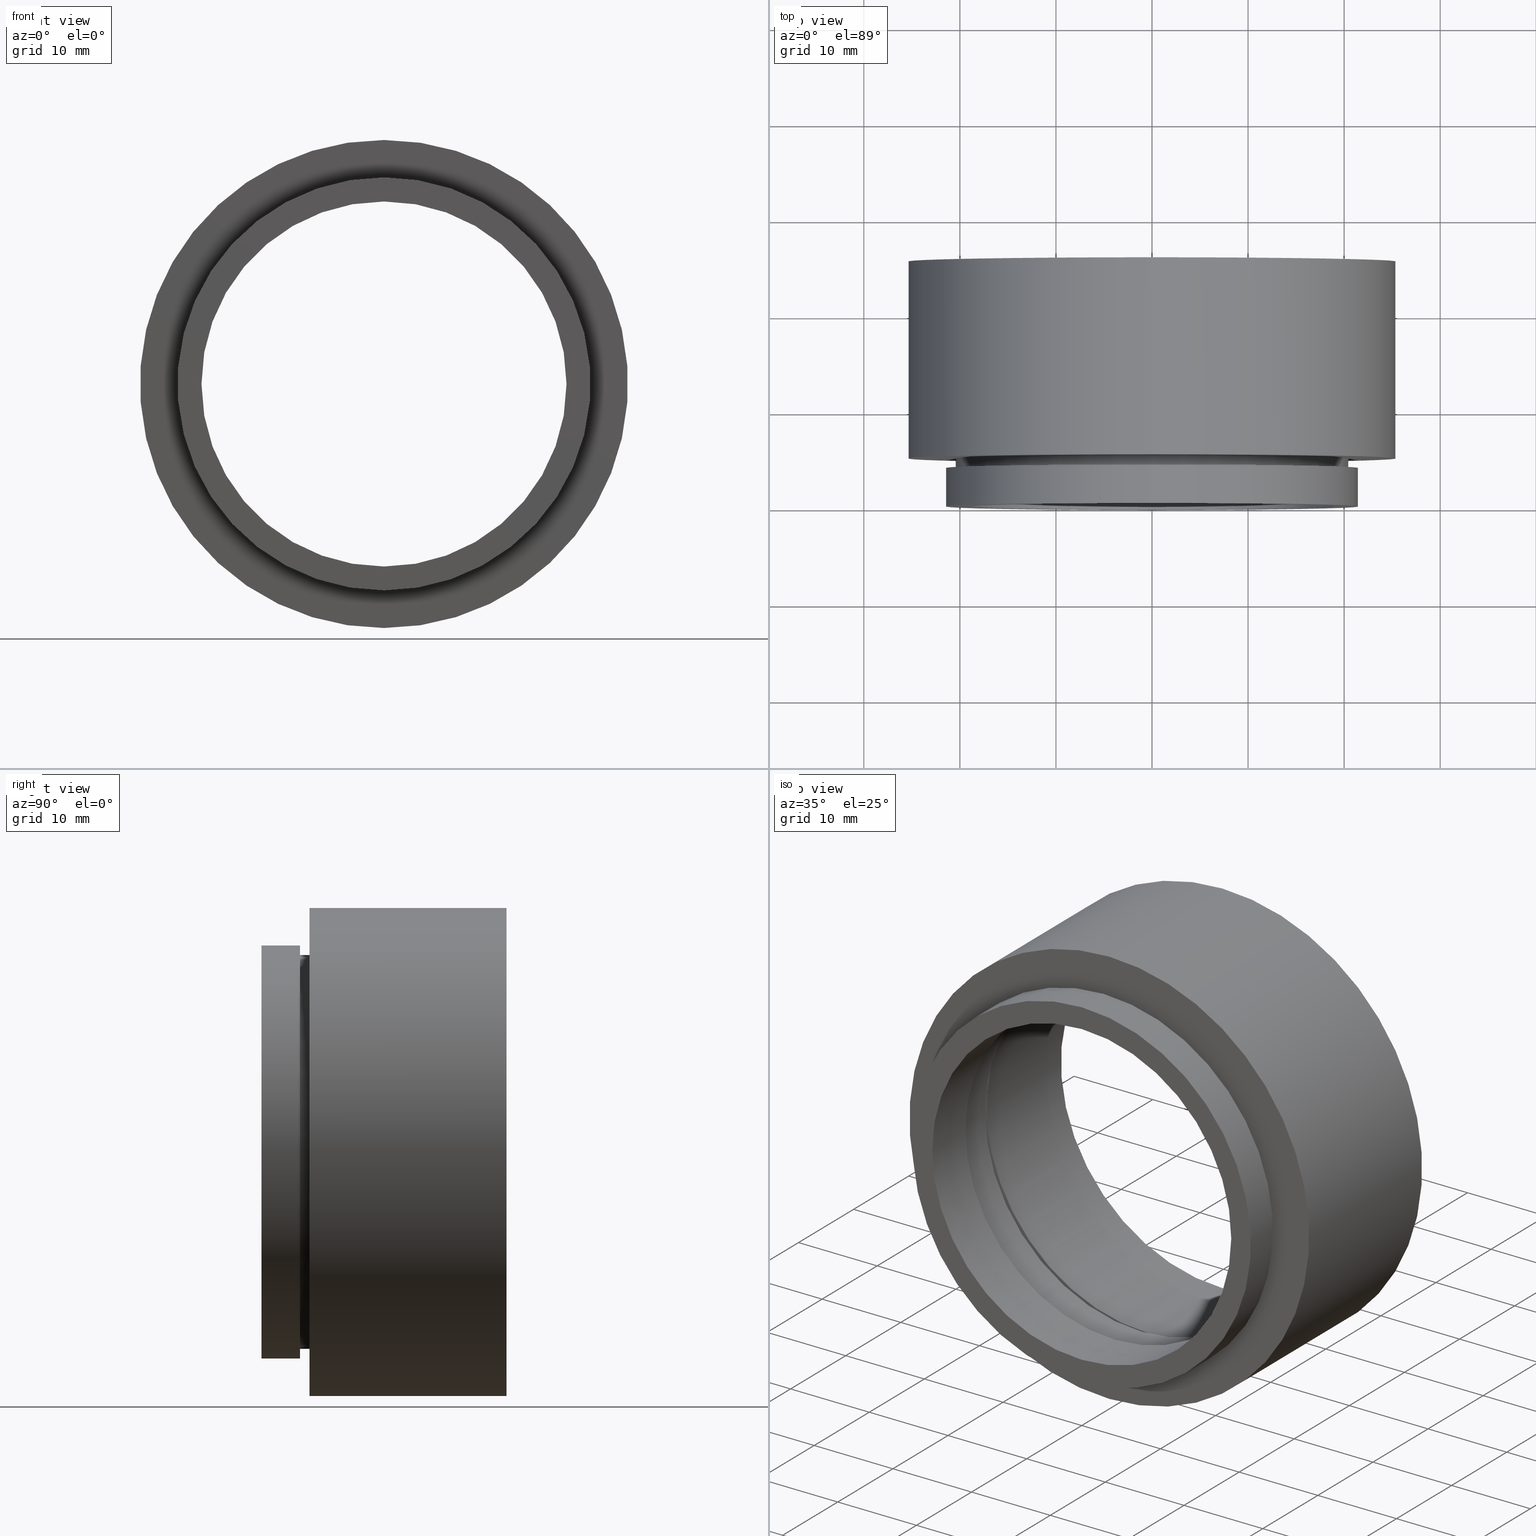
[diagram: canonical four-view strip — front | top / right | iso, engineering-drawing reading convention]
A machine part, canonical four-view strip (front | top / right | iso — engineering-drawing reading convention). The complete STEP part file that produces these views, byte-faithful:
ISO-10303-21;
HEADER;
FILE_DESCRIPTION (( 'STEP AP214' ),
    '1' );
FILE_NAME ('500011.STEP',
    '2019-08-29T07:36:52',
    ( 'user' ),
    ( '΢���й�' ),
    'SwSTEP 2.0',
    'SolidWorks 2016',
    '' );
FILE_SCHEMA (( 'AUTOMOTIVE_DESIGN' ));
ENDSEC;

DATA;
#1 = ORIENTED_EDGE ( 'NONE', *, *, #432, .F. ) ;
#2 = CARTESIAN_POINT ( 'NONE',  ( 0.0000000000000000000, 6.000000000000000000, 0.0000000000000000000 ) ) ;
#3 = ORIENTED_EDGE ( 'NONE', *, *, #542, .T. ) ;
#4 = ORIENTED_EDGE ( 'NONE', *, *, #295, .T. ) ;
#5 = CARTESIAN_POINT ( 'NONE',  ( 0.0000000000000000000, 5.000000000000000000, -25.39999999999999900 ) ) ;
#6 = DIRECTION ( 'NONE',  ( -0.0000000000000000000, -1.000000000000000000, -0.0000000000000000000 ) ) ;
#7 = AXIS2_PLACEMENT_3D ( 'NONE', #117, #543, #64 ) ;
#8 = VECTOR ( 'NONE', #73, 1000.000000000000000 ) ;
#9 = ADVANCED_FACE ( 'NONE', ( #264 ), #110, .T. ) ;
#10 =( NAMED_UNIT ( * ) PLANE_ANGLE_UNIT ( ) SI_UNIT ( $, .RADIAN. ) );
#11 = VERTEX_POINT ( 'NONE', #5 ) ;
#12 = DIRECTION ( 'NONE',  ( -0.0000000000000000000, -1.000000000000000000, -0.0000000000000000000 ) ) ;
#13 = EDGE_LOOP ( 'NONE', ( #665, #504 ) ) ;
#14 = DIRECTION ( 'NONE',  ( -0.0000000000000000000, -1.000000000000000000, -0.0000000000000000000 ) ) ;
#15 = AXIS2_PLACEMENT_3D ( 'NONE', #517, #123, #77 ) ;
#16 = CYLINDRICAL_SURFACE ( 'NONE', #506, 19.99999999999999600 ) ;
#17 = SURFACE_SIDE_STYLE ('',( #291 ) ) ;
#18 = CIRCLE ( 'NONE', #612, 20.00000000000000000 ) ;
#19 = DIRECTION ( 'NONE',  ( 0.0000000000000000000, 0.0000000000000000000, -1.000000000000000000 ) ) ;
#20 = SURFACE_STYLE_USAGE ( .BOTH. , #134 ) ;
#21 = CARTESIAN_POINT ( 'NONE',  ( 2.584004746200915400E-015, 11.00000000000000200, 21.10000000000000100 ) ) ;
#22 = VERTEX_POINT ( 'NONE', #363 ) ;
#23 = ORIENTED_EDGE ( 'NONE', *, *, #435, .F. ) ;
#24 = CARTESIAN_POINT ( 'NONE',  ( 0.0000000000000000000, 12.00000000000000000, 0.0000000000000000000 ) ) ;
#25 = AXIS2_PLACEMENT_3D ( 'NONE', #645, #590, #252 ) ;
#26 = PLANE ( 'NONE',  #587 ) ;
#27 = AXIS2_PLACEMENT_3D ( 'NONE', #151, #164, #273 ) ;
#28 = FACE_OUTER_BOUND ( 'NONE', #43, .T. ) ;
#29 = EDGE_CURVE ( 'NONE', #357, #63, #282, .T. ) ;
#30 = ORIENTED_EDGE ( 'NONE', *, *, #493, .F. ) ;
#31 = VERTEX_POINT ( 'NONE', #445 ) ;
#32 = AXIS2_PLACEMENT_3D ( 'NONE', #289, #617, #603 ) ;
#33 = LINE ( 'NONE', #466, #229 ) ;
#34 = EDGE_LOOP ( 'NONE', ( #465, #451, #330, #489 ) ) ;
#35 = FACE_OUTER_BOUND ( 'NONE', #356, .T. ) ;
#36 = ORIENTED_EDGE ( 'NONE', *, *, #527, .T. ) ;
#37 = CARTESIAN_POINT ( 'NONE',  ( 0.0000000000000000000, -6.123233995736767300E-016, -19.00000000000000000 ) ) ;
#38 = CARTESIAN_POINT ( 'NONE',  ( 0.0000000000000000000, 3.999999999999999100, 0.0000000000000000000 ) ) ;
#39 = CIRCLE ( 'NONE', #162, 20.50000000000000000 ) ;
#40 = EDGE_CURVE ( 'NONE', #412, #488, #120, .T. ) ;
#41 = DIRECTION ( 'NONE',  ( 0.0000000000000000000, 1.000000000000000000, 0.0000000000000000000 ) ) ;
#42 = AXIS2_PLACEMENT_3D ( 'NONE', #664, #143, #596 ) ;
#43 = EDGE_LOOP ( 'NONE', ( #341, #602, #409, #565 ) ) ;
#44 = EDGE_CURVE ( 'NONE', #267, #31, #115, .T. ) ;
#45 = DIRECTION ( 'NONE',  ( 0.0000000000000000000, 0.0000000000000000000, -1.000000000000000000 ) ) ;
#46 = ORIENTED_EDGE ( 'NONE', *, *, #292, .T. ) ;
#47 = DIRECTION ( 'NONE',  ( -0.0000000000000000000, -1.000000000000000000, -0.0000000000000000000 ) ) ;
#48 = FACE_OUTER_BOUND ( 'NONE', #652, .T. ) ;
#49 = CARTESIAN_POINT ( 'NONE',  ( 0.0000000000000000000, 0.0000000000000000000, -20.50000000000000000 ) ) ;
#50 = VECTOR ( 'NONE', #227, 1000.000000000000000 ) ;
#51 = STYLED_ITEM ( 'NONE', ( #182 ), #74 ) ;
#52 = EDGE_CURVE ( 'NONE', #481, #257, #411, .T. ) ;
#53 = DIRECTION ( 'NONE',  ( -0.0000000000000000000, -1.000000000000000000, -0.0000000000000000000 ) ) ;
#54 = EDGE_LOOP ( 'NONE', ( #422, #62 ) ) ;
#55 = EDGE_CURVE ( 'NONE', #285, #146, #105, .T. ) ;
#56 = VERTEX_POINT ( 'NONE', #94 ) ;
#57 = DIRECTION ( 'NONE',  ( -0.0000000000000000000, -1.000000000000000000, -0.0000000000000000000 ) ) ;
#58 = PRODUCT_CONTEXT ( 'NONE', #391, 'mechanical' ) ;
#59 = PRESENTATION_STYLE_ASSIGNMENT (( #300 ) ) ;
#60 = PRESENTATION_LAYER_ASSIGNMENT (  '', '', ( #51 ) ) ;
#61 = COLOUR_RGB ( '',1.000000000000000000, 1.000000000000000000, 1.000000000000000000 ) ;
#62 = ORIENTED_EDGE ( 'NONE', *, *, #592, .T. ) ;
#63 = VERTEX_POINT ( 'NONE', #37 ) ;
#64 = DIRECTION ( 'NONE',  ( 0.0000000000000000000, 0.0000000000000000000, -1.000000000000000000 ) ) ;
#65 = AXIS2_PLACEMENT_3D ( 'NONE', #24, #225, #475 ) ;
#66 = ADVANCED_FACE ( 'NONE', ( #294 ), #132, .T. ) ;
#67 = DIRECTION ( 'NONE',  ( 0.0000000000000000000, 0.0000000000000000000, 1.000000000000000000 ) ) ;
#68 = DIRECTION ( 'NONE',  ( 0.0000000000000000000, 0.0000000000000000000, -1.000000000000000000 ) ) ;
#69 = FACE_BOUND ( 'NONE', #54, .T. ) ;
#70 = DIRECTION ( 'NONE',  ( 0.0000000000000000000, -1.000000000000000000, -0.0000000000000000000 ) ) ;
#71 = ORIENTED_EDGE ( 'NONE', *, *, #286, .F. ) ;
#72 = ORIENTED_EDGE ( 'NONE', *, *, #281, .F. ) ;
#73 = DIRECTION ( 'NONE',  ( -0.0000000000000000000, -1.000000000000000000, -0.0000000000000000000 ) ) ;
#74 = ADVANCED_FACE ( 'NONE', ( #234 ), #186, .T. ) ;
#75 = AXIS2_PLACEMENT_3D ( 'NONE', #589, #41, #335 ) ;
#76 = CARTESIAN_POINT ( 'NONE',  ( 0.0000000000000000000, 6.000000000000000000, 0.0000000000000000000 ) ) ;
#77 = DIRECTION ( 'NONE',  ( 0.0000000000000000000, -0.0000000000000000000, 1.000000000000000000 ) ) ;
#78 = LINE ( 'NONE', #606, #103 ) ;
#79 = AXIS2_PLACEMENT_3D ( 'NONE', #397, #384, #171 ) ;
#80 = ORIENTED_EDGE ( 'NONE', *, *, #271, .F. ) ;
#81 = VERTEX_POINT ( 'NONE', #287 ) ;
#82 = DIRECTION ( 'NONE',  ( -0.0000000000000000000, -1.000000000000000000, -0.0000000000000000000 ) ) ;
#83 = CIRCLE ( 'NONE', #509, 20.00000000000000000 ) ;
#84 = DIRECTION ( 'NONE',  ( -0.0000000000000000000, -1.000000000000000000, -0.0000000000000000000 ) ) ;
#85 = PLANE ( 'NONE',  #605 ) ;
#86 = CARTESIAN_POINT ( 'NONE',  ( 0.0000000000000000000, 0.0000000000000000000, -21.10000000000000100 ) ) ;
#87 = EDGE_CURVE ( 'NONE', #81, #357, #436, .T. ) ;
#88 = DIRECTION ( 'NONE',  ( 0.0000000000000000000, 0.0000000000000000000, -1.000000000000000000 ) ) ;
#89 = MECHANICAL_DESIGN_GEOMETRIC_PRESENTATION_REPRESENTATION (  '', ( #51 ), #270 ) ;
#90 = CIRCLE ( 'NONE', #362, 25.39999999999999900 ) ;
#91 = UNCERTAINTY_MEASURE_WITH_UNIT (LENGTH_MEASURE( 1.000000000000000100E-005 ), #444, 'distance_accuracy_value', 'NONE');
#92 = FACE_OUTER_BOUND ( 'NONE', #293, .T. ) ;
#93 = PLANE ( 'NONE',  #144 ) ;
#94 = CARTESIAN_POINT ( 'NONE',  ( 0.0000000000000000000, 3.999999999999999100, -20.50000000000000000 ) ) ;
#95 = COLOUR_RGB ( '',1.000000000000000000, 1.000000000000000000, 1.000000000000000000 ) ;
#96 = CARTESIAN_POINT ( 'NONE',  ( 0.0000000000000000000, 0.0000000000000000000, 0.0000000000000000000 ) ) ;
#97 = VECTOR ( 'NONE', #47, 1000.000000000000000 ) ;
#98 = AXIS2_PLACEMENT_3D ( 'NONE', #667, #248, #595 ) ;
#99 = DIRECTION ( 'NONE',  ( 0.0000000000000000000, 0.0000000000000000000, -1.000000000000000000 ) ) ;
#100 = DIRECTION ( 'NONE',  ( 0.0000000000000000000, 0.0000000000000000000, -1.000000000000000000 ) ) ;
#101 = AXIS2_PLACEMENT_3D ( 'NONE', #112, #279, #99 ) ;
#102 = COLOUR_RGB ( '',1.000000000000000000, 1.000000000000000000, 1.000000000000000000 ) ;
#103 = VECTOR ( 'NONE', #208, 1000.000000000000000 ) ;
#104 = DIRECTION ( 'NONE',  ( 0.0000000000000000000, 0.0000000000000000000, -1.000000000000000000 ) ) ;
#105 = CIRCLE ( 'NONE', #65, 20.50000000000000000 ) ;
#106 = MECHANICAL_DESIGN_GEOMETRIC_PRESENTATION_REPRESENTATION (  '', ( #122 ), #114 ) ;
#107 = FACE_OUTER_BOUND ( 'NONE', #139, .T. ) ;
#108 = FILL_AREA_STYLE_COLOUR ( '', #156 ) ;
#109 = DIRECTION ( 'NONE',  ( -0.0000000000000000000, -1.000000000000000000, -0.0000000000000000000 ) ) ;
#110 = CYLINDRICAL_SURFACE ( 'NONE', #79, 21.50000000000000000 ) ;
#111 = VECTOR ( 'NONE', #217, 1000.000000000000000 ) ;
#112 = CARTESIAN_POINT ( 'NONE',  ( 0.0000000000000000000, 11.00000000000000200, 0.0000000000000000000 ) ) ;
#113 = CARTESIAN_POINT ( 'NONE',  ( 2.510525938252074500E-015, 12.00000000000000000, 20.50000000000000000 ) ) ;
#114 =( GEOMETRIC_REPRESENTATION_CONTEXT ( 3 ) GLOBAL_UNCERTAINTY_ASSIGNED_CONTEXT ( ( #276 ) ) GLOBAL_UNIT_ASSIGNED_CONTEXT ( ( #333, #140, #258 ) ) REPRESENTATION_CONTEXT ( 'NONE', 'WORKASPACE' ) );
#115 = CIRCLE ( 'NONE', #101, 21.10000000000000100 ) ;
#116 = CARTESIAN_POINT ( 'NONE',  ( 2.584004746200915400E-015, 12.00000000000000000, 21.10000000000000100 ) ) ;
#117 = CARTESIAN_POINT ( 'NONE',  ( 0.0000000000000000000, 11.00000000000000200, 0.0000000000000000000 ) ) ;
#118 = DIRECTION ( 'NONE',  ( -0.0000000000000000000, -1.000000000000000000, -0.0000000000000000000 ) ) ;
#119 = VECTOR ( 'NONE', #316, 1000.000000000000000 ) ;
#120 = LINE ( 'NONE', #307, #119 ) ;
#121 = DIRECTION ( 'NONE',  ( -0.0000000000000000000, -1.000000000000000000, -0.0000000000000000000 ) ) ;
#122 = STYLED_ITEM ( 'NONE', ( #190 ), #9 ) ;
#123 = DIRECTION ( 'NONE',  ( 0.0000000000000000000, 1.000000000000000000, 0.0000000000000000000 ) ) ;
#124 = EDGE_LOOP ( 'NONE', ( #214, #601 ) ) ;
#125 = DIRECTION ( 'NONE',  ( 0.0000000000000000000, 0.0000000000000000000, -1.000000000000000000 ) ) ;
#126 = PRESENTATION_LAYER_ASSIGNMENT (  '', '', ( #122 ) ) ;
#127 = CARTESIAN_POINT ( 'NONE',  ( 0.0000000000000000000, 0.0000000000000000000, 0.0000000000000000000 ) ) ;
#128 = PLANE ( 'NONE',  #15 ) ;
#129 = VERTEX_POINT ( 'NONE', #368 ) ;
#130 = EDGE_CURVE ( 'NONE', #56, #651, #318, .T. ) ;
#131 = ORIENTED_EDGE ( 'NONE', *, *, #184, .F. ) ;
#132 = CYLINDRICAL_SURFACE ( 'NONE', #572, 25.39999999999999900 ) ;
#133 = CARTESIAN_POINT ( 'NONE',  ( 2.632990618166809200E-015, 0.0000000000000000000, 21.50000000000000000 ) ) ;
#134 = SURFACE_SIDE_STYLE ('',( #659 ) ) ;
#135 = SURFACE_SIDE_STYLE ('',( #299 ) ) ;
#136 = LINE ( 'NONE', #49, #8 ) ;
#137 = PRESENTATION_STYLE_ASSIGNMENT (( #389 ) ) ;
#138 = DIRECTION ( 'NONE',  ( 0.0000000000000000000, 1.000000000000000000, 0.0000000000000000000 ) ) ;
#139 = EDGE_LOOP ( 'NONE', ( #161, #633, #609, #376 ) ) ;
#140 =( NAMED_UNIT ( * ) PLANE_ANGLE_UNIT ( ) SI_UNIT ( $, .RADIAN. ) );
#141 = DIRECTION ( 'NONE',  ( 0.0000000000000000000, 0.0000000000000000000, -1.000000000000000000 ) ) ;
#142 = FACE_OUTER_BOUND ( 'NONE', #640, .T. ) ;
#143 = DIRECTION ( 'NONE',  ( -0.0000000000000000000, -1.000000000000000000, -0.0000000000000000000 ) ) ;
#144 = AXIS2_PLACEMENT_3D ( 'NONE', #628, #650, #179 ) ;
#145 = EDGE_CURVE ( 'NONE', #481, #31, #426, .T. ) ;
#146 = VERTEX_POINT ( 'NONE', #113 ) ;
#147 = CLOSED_SHELL ( 'NONE', ( #532, #626, #434, #629, #643, #9, #477, #350, #429, #74, #240, #418, #305, #66, #382, #578, #671, #315, #236, #387, #249 ) ) ;
#148 = FILL_AREA_STYLE ('',( #108 ) ) ;
#149 = FACE_OUTER_BOUND ( 'NONE', #564, .T. ) ;
#150 = FACE_OUTER_BOUND ( 'NONE', #661, .T. ) ;
#151 = CARTESIAN_POINT ( 'NONE',  ( 0.0000000000000000000, 0.0000000000000000000, 0.0000000000000000000 ) ) ;
#152 = ADVANCED_BREP_SHAPE_REPRESENTATION ( '500011', ( #584, #191 ), #296 ) ;
#153 = DIRECTION ( 'NONE',  ( -0.0000000000000000000, -1.000000000000000000, -0.0000000000000000000 ) ) ;
#154 = DIRECTION ( 'NONE',  ( 0.0000000000000000000, 0.0000000000000000000, -1.000000000000000000 ) ) ;
#155 = AXIS2_PLACEMENT_3D ( 'NONE', #239, #494, #379 ) ;
#156 = COLOUR_RGB ( '',1.000000000000000000, 1.000000000000000000, 1.000000000000000000 ) ;
#157 = DIRECTION ( 'NONE',  ( -0.0000000000000000000, -1.000000000000000000, -0.0000000000000000000 ) ) ;
#158 = ORIENTED_EDGE ( 'NONE', *, *, #295, .F. ) ;
#159 = CIRCLE ( 'NONE', #555, 19.00000000000000000 ) ;
#160 =( NAMED_UNIT ( * ) SI_UNIT ( $, .STERADIAN. ) SOLID_ANGLE_UNIT ( ) );
#161 = ORIENTED_EDGE ( 'NONE', *, *, #460, .F. ) ;
#162 = AXIS2_PLACEMENT_3D ( 'NONE', #38, #6, #166 ) ;
#163 = CARTESIAN_POINT ( 'NONE',  ( 0.0000000000000000000, 0.0000000000000000000, 0.0000000000000000000 ) ) ;
#164 = DIRECTION ( 'NONE',  ( -0.0000000000000000000, -1.000000000000000000, -0.0000000000000000000 ) ) ;
#165 = CARTESIAN_POINT ( 'NONE',  ( 0.0000000000000000000, 0.0000000000000000000, 0.0000000000000000000 ) ) ;
#166 = DIRECTION ( 'NONE',  ( 0.0000000000000000000, 0.0000000000000000000, -1.000000000000000000 ) ) ;
#167 = FACE_BOUND ( 'NONE', #13, .T. ) ;
#168 = DIRECTION ( 'NONE',  ( -0.0000000000000000000, -1.000000000000000000, -0.0000000000000000000 ) ) ;
#169 = DIRECTION ( 'NONE',  ( 1.000000000000000000, 0.0000000000000000000, 0.0000000000000000000 ) ) ;
#170 = CARTESIAN_POINT ( 'NONE',  ( 2.510525938252074500E-015, 25.50000000000000000, 20.50000000000000000 ) ) ;
#171 = DIRECTION ( 'NONE',  ( 0.0000000000000000000, 0.0000000000000000000, -1.000000000000000000 ) ) ;
#172 = DIRECTION ( 'NONE',  ( -0.0000000000000000000, -1.000000000000000000, -0.0000000000000000000 ) ) ;
#173 = EDGE_LOOP ( 'NONE', ( #449, #431, #71, #283 ) ) ;
#174 = COLOUR_RGB ( '',1.000000000000000000, 1.000000000000000000, 1.000000000000000000 ) ;
#175 = CARTESIAN_POINT ( 'NONE',  ( 0.0000000000000000000, 11.00000000000000000, 0.0000000000000000000 ) ) ;
#176 = CARTESIAN_POINT ( 'NONE',  ( 0.0000000000000000000, 4.999999999999999100, -20.50000000000000000 ) ) ;
#177 = VECTOR ( 'NONE', #12, 1000.000000000000000 ) ;
#178 = LINE ( 'NONE', #528, #192 ) ;
#179 = DIRECTION ( 'NONE',  ( 0.0000000000000000000, -0.0000000000000000000, 1.000000000000000000 ) ) ;
#180 = ORIENTED_EDGE ( 'NONE', *, *, #592, .F. ) ;
#181 = FACE_OUTER_BOUND ( 'NONE', #511, .T. ) ;
#182 = PRESENTATION_STYLE_ASSIGNMENT (( #470 ) ) ;
#183 = PRODUCT_DEFINITION_FORMATION_WITH_SPECIFIED_SOURCE ( '�κ�', '', #608, .NOT_KNOWN. ) ;
#184 = EDGE_CURVE ( 'NONE', #63, #512, #280, .T. ) ;
#185 = DIRECTION ( 'NONE',  ( -0.0000000000000000000, -1.000000000000000000, -0.0000000000000000000 ) ) ;
#186 = CYLINDRICAL_SURFACE ( 'NONE', #32, 21.50000000000000000 ) ;
#187 = EDGE_CURVE ( 'NONE', #11, #405, #90, .T. ) ;
#188 = DIRECTION ( 'NONE',  ( 0.0000000000000000000, 0.0000000000000000000, -1.000000000000000000 ) ) ;
#189 = ORIENTED_EDGE ( 'NONE', *, *, #618, .T. ) ;
#190 = PRESENTATION_STYLE_ASSIGNMENT (( #577 ) ) ;
#191 = AXIS2_PLACEMENT_3D ( 'NONE', #245, #67, #169 ) ;
#192 = VECTOR ( 'NONE', #503, 1000.000000000000000 ) ;
#193 = COLOUR_RGB ( '',1.000000000000000000, 1.000000000000000000, 1.000000000000000000 ) ;
#194 = PRODUCT_DEFINITION ( 'δ֪', '', #183, #615 ) ;
#195 = DIRECTION ( 'NONE',  ( 0.0000000000000000000, 0.0000000000000000000, -1.000000000000000000 ) ) ;
#196 = CARTESIAN_POINT ( 'NONE',  ( 0.0000000000000000000, 25.50000000000000000, 0.0000000000000000000 ) ) ;
#197 =( NAMED_UNIT ( * ) SI_UNIT ( $, .STERADIAN. ) SOLID_ANGLE_UNIT ( ) );
#198 = CARTESIAN_POINT ( 'NONE',  ( 2.326828918379971000E-015, 0.0000000000000000000, 19.00000000000000000 ) ) ;
#199 = CARTESIAN_POINT ( 'NONE',  ( 0.0000000000000000000, 25.50000000000000000, 0.0000000000000000000 ) ) ;
#200 = CARTESIAN_POINT ( 'NONE',  ( 2.326828918379971000E-015, -6.123233995736767300E-016, 19.00000000000000000 ) ) ;
#201 = AXIS2_PLACEMENT_3D ( 'NONE', #175, #570, #268 ) ;
#202 = FILL_AREA_STYLE_COLOUR ( '', #174 ) ;
#203 = CYLINDRICAL_SURFACE ( 'NONE', #563, 19.00000000000000000 ) ;
#204 = DIRECTION ( 'NONE',  ( -0.0000000000000000000, -1.000000000000000000, -0.0000000000000000000 ) ) ;
#205 = EDGE_LOOP ( 'NONE', ( #367, #473 ) ) ;
#206 = APPLICATION_PROTOCOL_DEFINITION ( 'draft international standard', 'automotive_design', 1998, #639 ) ;
#207 = AXIS2_PLACEMENT_3D ( 'NONE', #552, #410, #277 ) ;
#208 = DIRECTION ( 'NONE',  ( -0.0000000000000000000, -1.000000000000000000, -0.0000000000000000000 ) ) ;
#209 = EDGE_CURVE ( 'NONE', #257, #481, #326, .T. ) ;
#210 = DIRECTION ( 'NONE',  ( -0.0000000000000000000, -1.000000000000000000, -0.0000000000000000000 ) ) ;
#211 = EDGE_CURVE ( 'NONE', #257, #267, #288, .T. ) ;
#212 = DIRECTION ( 'NONE',  ( -0.0000000000000000000, -1.000000000000000000, -0.0000000000000000000 ) ) ;
#213 = EDGE_CURVE ( 'NONE', #438, #405, #178, .T. ) ;
#214 = ORIENTED_EDGE ( 'NONE', *, *, #130, .T. ) ;
#215 = DIRECTION ( 'NONE',  ( 0.0000000000000000000, 0.0000000000000000000, -1.000000000000000000 ) ) ;
#216 = DIRECTION ( 'NONE',  ( -0.0000000000000000000, -1.000000000000000000, -0.0000000000000000000 ) ) ;
#217 = DIRECTION ( 'NONE',  ( -0.0000000000000000000, -1.000000000000000000, -0.0000000000000000000 ) ) ;
#218 = FACE_BOUND ( 'NONE', #124, .T. ) ;
#219 =( NAMED_UNIT ( * ) SI_UNIT ( $, .STERADIAN. ) SOLID_ANGLE_UNIT ( ) );
#220 = FACE_BOUND ( 'NONE', #256, .T. ) ;
#221 = ORIENTED_EDGE ( 'NONE', *, *, #377, .F. ) ;
#222 = CARTESIAN_POINT ( 'NONE',  ( 0.0000000000000000000, 5.000000000000000000, 0.0000000000000000000 ) ) ;
#223 = ORIENTED_EDGE ( 'NONE', *, *, #44, .T. ) ;
#224 = MECHANICAL_DESIGN_GEOMETRIC_PRESENTATION_REPRESENTATION (  '', ( #247 ), #230 ) ;
#225 = DIRECTION ( 'NONE',  ( -0.0000000000000000000, -1.000000000000000000, -0.0000000000000000000 ) ) ;
#226 = AXIS2_PLACEMENT_3D ( 'NONE', #662, #327, #45 ) ;
#227 = DIRECTION ( 'NONE',  ( -0.0000000000000000000, -1.000000000000000000, -0.0000000000000000000 ) ) ;
#228 = CIRCLE ( 'NONE', #359, 20.50000000000000000 ) ;
#229 = VECTOR ( 'NONE', #490, 1000.000000000000000 ) ;
#230 =( GEOMETRIC_REPRESENTATION_CONTEXT ( 3 ) GLOBAL_UNCERTAINTY_ASSIGNED_CONTEXT ( ( #91 ) ) GLOBAL_UNIT_ASSIGNED_CONTEXT ( ( #444, #10, #197 ) ) REPRESENTATION_CONTEXT ( 'NONE', 'WORKASPACE' ) );
#231 = ORIENTED_EDGE ( 'NONE', *, *, #52, .T. ) ;
#232 = CYLINDRICAL_SURFACE ( 'NONE', #354, 20.50000000000000000 ) ;
#233 = DIRECTION ( 'NONE',  ( 0.0000000000000000000, 0.0000000000000000000, -1.000000000000000000 ) ) ;
#234 = FACE_OUTER_BOUND ( 'NONE', #583, .T. ) ;
#235 = DIRECTION ( 'NONE',  ( -0.0000000000000000000, -1.000000000000000000, -0.0000000000000000000 ) ) ;
#236 = ADVANCED_FACE ( 'NONE', ( #69, #370 ), #369, .T. ) ;
#237 = EDGE_CURVE ( 'NONE', #467, #438, #250, .T. ) ;
#238 = LINE ( 'NONE', #442, #554 ) ;
#239 = CARTESIAN_POINT ( 'NONE',  ( 0.0000000000000000000, 4.999999999999999100, 0.0000000000000000000 ) ) ;
#240 = ADVANCED_FACE ( 'NONE', ( #218, #526 ), #93, .T. ) ;
#241 = DIRECTION ( 'NONE',  ( 0.0000000000000000000, 0.0000000000000000000, -1.000000000000000000 ) ) ;
#242 = ORIENTED_EDGE ( 'NONE', *, *, #493, .T. ) ;
#243 = CYLINDRICAL_SURFACE ( 'NONE', #413, 20.50000000000000000 ) ;
#244 = SURFACE_STYLE_FILL_AREA ( #547 ) ;
#245 = CARTESIAN_POINT ( 'NONE',  ( 0.0000000000000000000, 0.0000000000000000000, 0.0000000000000000000 ) ) ;
#246 = EDGE_CURVE ( 'NONE', #651, #56, #39, .T. ) ;
#247 = STYLED_ITEM ( 'NONE', ( #469 ), #152 ) ;
#248 = DIRECTION ( 'NONE',  ( -0.0000000000000000000, -1.000000000000000000, -0.0000000000000000000 ) ) ;
#249 = ADVANCED_FACE ( 'NONE', ( #571, #636 ), #128, .T. ) ;
#250 = CIRCLE ( 'NONE', #337, 25.39999999999999900 ) ;
#251 = CIRCLE ( 'NONE', #201, 19.99999999999999600 ) ;
#252 = DIRECTION ( 'NONE',  ( 0.0000000000000000000, 0.0000000000000000000, -1.000000000000000000 ) ) ;
#253 = CARTESIAN_POINT ( 'NONE',  ( 0.0000000000000000000, 0.0000000000000000000, -21.50000000000000000 ) ) ;
#254 = VERTEX_POINT ( 'NONE', #133 ) ;
#255 = PRESENTATION_LAYER_ASSIGNMENT (  '', '', ( #247 ) ) ;
#256 = EDGE_LOOP ( 'NONE', ( #668, #660 ) ) ;
#257 = VERTEX_POINT ( 'NONE', #116 ) ;
#258 =( NAMED_UNIT ( * ) SI_UNIT ( $, .STERADIAN. ) SOLID_ANGLE_UNIT ( ) );
#259 = DIRECTION ( 'NONE',  ( 0.0000000000000000000, -1.000000000000000000, -0.0000000000000000000 ) ) ;
#260 = CARTESIAN_POINT ( 'NONE',  ( 0.0000000000000000000, 25.50000000000000000, -20.50000000000000000 ) ) ;
#261 = CARTESIAN_POINT ( 'NONE',  ( 20.50000000000000000, 4.999999999999999100, 0.0000000000000000000 ) ) ;
#262 = CARTESIAN_POINT ( 'NONE',  ( 0.0000000000000000000, 0.0000000000000000000, 0.0000000000000000000 ) ) ;
#263 = DIRECTION ( 'NONE',  ( 0.0000000000000000000, 0.0000000000000000000, -1.000000000000000000 ) ) ;
#264 = FACE_OUTER_BOUND ( 'NONE', #173, .T. ) ;
#265 = CIRCLE ( 'NONE', #342, 19.00000000000000000 ) ;
#266 = PRESENTATION_LAYER_ASSIGNMENT (  '', '', ( #278 ) ) ;
#267 = VERTEX_POINT ( 'NONE', #21 ) ;
#268 = DIRECTION ( 'NONE',  ( 0.0000000000000000000, 0.0000000000000000000, -1.000000000000000000 ) ) ;
#269 = DIRECTION ( 'NONE',  ( 0.0000000000000000000, 0.0000000000000000000, -1.000000000000000000 ) ) ;
#270 =( GEOMETRIC_REPRESENTATION_CONTEXT ( 3 ) GLOBAL_UNCERTAINTY_ASSIGNED_CONTEXT ( ( #657 ) ) GLOBAL_UNIT_ASSIGNED_CONTEXT ( ( #593, #600, #474 ) ) REPRESENTATION_CONTEXT ( 'NONE', 'WORKASPACE' ) );
#271 = EDGE_CURVE ( 'NONE', #338, #285, #136, .T. ) ;
#272 = CIRCLE ( 'NONE', #501, 19.99999999999999600 ) ;
#273 = DIRECTION ( 'NONE',  ( 0.0000000000000000000, 0.0000000000000000000, -1.000000000000000000 ) ) ;
#274 = EDGE_LOOP ( 'NONE', ( #625, #242 ) ) ;
#275 = ORIENTED_EDGE ( 'NONE', *, *, #377, .T. ) ;
#276 = UNCERTAINTY_MEASURE_WITH_UNIT (LENGTH_MEASURE( 1.000000000000000100E-005 ), #333, 'distance_accuracy_value', 'NONE');
#277 = DIRECTION ( 'NONE',  ( 0.0000000000000000000, 0.0000000000000000000, -1.000000000000000000 ) ) ;
#278 = STYLED_ITEM ( 'NONE', ( #137 ), #584 ) ;
#279 = DIRECTION ( 'NONE',  ( -0.0000000000000000000, -1.000000000000000000, -0.0000000000000000000 ) ) ;
#280 = CIRCLE ( 'NONE', #226, 19.00000000000000000 ) ;
#281 = EDGE_CURVE ( 'NONE', #412, #311, #463, .T. ) ;
#282 = LINE ( 'NONE', #505, #111 ) ;
#283 = ORIENTED_EDGE ( 'NONE', *, *, #40, .F. ) ;
#284 = CARTESIAN_POINT ( 'NONE',  ( 2.632990618166809200E-015, 3.999999999999999100, 21.50000000000000000 ) ) ;
#285 = VERTEX_POINT ( 'NONE', #638 ) ;
#286 = EDGE_CURVE ( 'NONE', #488, #254, #580, .T. ) ;
#287 = CARTESIAN_POINT ( 'NONE',  ( 2.326828918379971000E-015, 5.999999999999999100, 19.00000000000000000 ) ) ;
#288 = LINE ( 'NONE', #386, #637 ) ;
#289 = CARTESIAN_POINT ( 'NONE',  ( 0.0000000000000000000, 0.0000000000000000000, 0.0000000000000000000 ) ) ;
#290 = VECTOR ( 'NONE', #57, 1000.000000000000000 ) ;
#291 = SURFACE_STYLE_FILL_AREA ( #486 ) ;
#292 = EDGE_CURVE ( 'NONE', #81, #512, #627, .T. ) ;
#293 = EDGE_LOOP ( 'NONE', ( #558, #546, #358, #619 ) ) ;
#294 = FACE_OUTER_BOUND ( 'NONE', #306, .T. ) ;
#295 = EDGE_CURVE ( 'NONE', #31, #267, #491, .T. ) ;
#296 =( GEOMETRIC_REPRESENTATION_CONTEXT ( 3 ) GLOBAL_UNCERTAINTY_ASSIGNED_CONTEXT ( ( #403 ) ) GLOBAL_UNIT_ASSIGNED_CONTEXT ( ( #308, #507, #508 ) ) REPRESENTATION_CONTEXT ( 'NONE', 'WORKASPACE' ) );
#297 = EDGE_CURVE ( 'NONE', #438, #467, #560, .T. ) ;
#298 = CARTESIAN_POINT ( 'NONE',  ( 2.510525938252074500E-015, 0.0000000000000000000, 20.50000000000000000 ) ) ;
#299 = SURFACE_STYLE_FILL_AREA ( #332 ) ;
#300 = SURFACE_STYLE_USAGE ( .BOTH. , #135 ) ;
#301 = EDGE_CURVE ( 'NONE', #22, #575, #556, .T. ) ;
#302 = ORIENTED_EDGE ( 'NONE', *, *, #271, .T. ) ;
#303 = DIRECTION ( 'NONE',  ( -0.0000000000000000000, -1.000000000000000000, -0.0000000000000000000 ) ) ;
#304 = ORIENTED_EDGE ( 'NONE', *, *, #613, .F. ) ;
#305 = ADVANCED_FACE ( 'NONE', ( #476, #220 ), #26, .T. ) ;
#306 = EDGE_LOOP ( 'NONE', ( #611, #483, #550, #30 ) ) ;
#307 = CARTESIAN_POINT ( 'NONE',  ( 0.0000000000000000000, 0.0000000000000000000, -21.50000000000000000 ) ) ;
#308 =( LENGTH_UNIT ( ) NAMED_UNIT ( * ) SI_UNIT ( .MILLI., .METRE. ) );
#309 = VECTOR ( 'NONE', #310, 1000.000000000000000 ) ;
#310 = DIRECTION ( 'NONE',  ( -0.0000000000000000000, -1.000000000000000000, -0.0000000000000000000 ) ) ;
#311 = VERTEX_POINT ( 'NONE', #284 ) ;
#312 = AXIS2_PLACEMENT_3D ( 'NONE', #319, #118, #269 ) ;
#313 = CYLINDRICAL_SURFACE ( 'NONE', #394, 20.50000000000000000 ) ;
#314 = DIRECTION ( 'NONE',  ( -0.0000000000000000000, -1.000000000000000000, -0.0000000000000000000 ) ) ;
#315 = ADVANCED_FACE ( 'NONE', ( #149 ), #648, .F. ) ;
#316 = DIRECTION ( 'NONE',  ( -0.0000000000000000000, -1.000000000000000000, -0.0000000000000000000 ) ) ;
#317 = FILL_AREA_STYLE_COLOUR ( '', #193 ) ;
#318 = CIRCLE ( 'NONE', #479, 20.50000000000000000 ) ;
#319 = CARTESIAN_POINT ( 'NONE',  ( 0.0000000000000000000, 0.0000000000000000000, 0.0000000000000000000 ) ) ;
#320 = VERTEX_POINT ( 'NONE', #568 ) ;
#321 = CARTESIAN_POINT ( 'NONE',  ( 0.0000000000000000000, 5.999999999999999100, 0.0000000000000000000 ) ) ;
#322 = AXIS2_PLACEMENT_3D ( 'NONE', #534, #303, #400 ) ;
#323 = AXIS2_PLACEMENT_3D ( 'NONE', #433, #314, #452 ) ;
#324 = DIRECTION ( 'NONE',  ( 0.0000000000000000000, 0.0000000000000000000, -1.000000000000000000 ) ) ;
#325 = DIRECTION ( 'NONE',  ( -0.0000000000000000000, -1.000000000000000000, -0.0000000000000000000 ) ) ;
#326 = CIRCLE ( 'NONE', #323, 21.10000000000000100 ) ;
#327 = DIRECTION ( 'NONE',  ( -0.0000000000000000000, -1.000000000000000000, -0.0000000000000000000 ) ) ;
#328 = ORIENTED_EDGE ( 'NONE', *, *, #52, .F. ) ;
#329 = AXIS2_PLACEMENT_3D ( 'NONE', #199, #212, #263 ) ;
#330 = ORIENTED_EDGE ( 'NONE', *, *, #187, .F. ) ;
#331 = SURFACE_SIDE_STYLE ('',( #244 ) ) ;
#332 = FILL_AREA_STYLE ('',( #344 ) ) ;
#333 =( LENGTH_UNIT ( ) NAMED_UNIT ( * ) SI_UNIT ( .MILLI., .METRE. ) );
#334 = CIRCLE ( 'NONE', #588, 20.50000000000000000 ) ;
#335 = DIRECTION ( 'NONE',  ( 0.0000000000000000000, -0.0000000000000000000, 1.000000000000000000 ) ) ;
#336 = CIRCLE ( 'NONE', #530, 20.50000000000000000 ) ;
#337 = AXIS2_PLACEMENT_3D ( 'NONE', #196, #168, #430 ) ;
#338 = VERTEX_POINT ( 'NONE', #260 ) ;
#339 = DIRECTION ( 'NONE',  ( 0.0000000000000000000, 0.0000000000000000000, -1.000000000000000000 ) ) ;
#340 = CYLINDRICAL_SURFACE ( 'NONE', #322, 25.39999999999999900 ) ;
#341 = ORIENTED_EDGE ( 'NONE', *, *, #364, .T. ) ;
#342 = AXIS2_PLACEMENT_3D ( 'NONE', #321, #325, #497 ) ;
#343 = DIRECTION ( 'NONE',  ( 0.0000000000000000000, 0.0000000000000000000, -1.000000000000000000 ) ) ;
#344 = FILL_AREA_STYLE_COLOUR ( '', #102 ) ;
#345 = CYLINDRICAL_SURFACE ( 'NONE', #498, 20.50000000000000000 ) ;
#346 = ORIENTED_EDGE ( 'NONE', *, *, #211, .F. ) ;
#347 = SURFACE_STYLE_FILL_AREA ( #148 ) ;
#348 =( GEOMETRIC_REPRESENTATION_CONTEXT ( 3 ) GLOBAL_UNCERTAINTY_ASSIGNED_CONTEXT ( ( #365 ) ) GLOBAL_UNIT_ASSIGNED_CONTEXT ( ( #395, #462, #160 ) ) REPRESENTATION_CONTEXT ( 'NONE', 'WORKASPACE' ) );
#349 = DIRECTION ( 'NONE',  ( 0.0000000000000000000, 0.0000000000000000000, -1.000000000000000000 ) ) ;
#350 = ADVANCED_FACE ( 'NONE', ( #92 ), #203, .F. ) ;
#351 = MECHANICAL_DESIGN_GEOMETRIC_PRESENTATION_REPRESENTATION (  '', ( #457 ), #348 ) ;
#352 = CYLINDRICAL_SURFACE ( 'NONE', #514, 19.00000000000000000 ) ;
#353 = DIRECTION ( 'NONE',  ( -0.0000000000000000000, -1.000000000000000000, -0.0000000000000000000 ) ) ;
#354 = AXIS2_PLACEMENT_3D ( 'NONE', #165, #353, #480 ) ;
#355 = CARTESIAN_POINT ( 'NONE',  ( 0.0000000000000000000, 5.999999999999999100, -19.00000000000000000 ) ) ;
#356 = EDGE_LOOP ( 'NONE', ( #231, #548 ) ) ;
#357 = VERTEX_POINT ( 'NONE', #355 ) ;
#358 = ORIENTED_EDGE ( 'NONE', *, *, #29, .T. ) ;
#359 = AXIS2_PLACEMENT_3D ( 'NONE', #464, #53, #523 ) ;
#360 = DIRECTION ( 'NONE',  ( -0.0000000000000000000, -1.000000000000000000, -0.0000000000000000000 ) ) ;
#361 = DIRECTION ( 'NONE',  ( 0.0000000000000000000, 0.0000000000000000000, -1.000000000000000000 ) ) ;
#362 = AXIS2_PLACEMENT_3D ( 'NONE', #366, #121, #125 ) ;
#363 = CARTESIAN_POINT ( 'NONE',  ( 2.510525938252074500E-015, 4.999999999999999100, 20.50000000000000000 ) ) ;
#364 = EDGE_CURVE ( 'NONE', #575, #22, #334, .T. ) ;
#365 = UNCERTAINTY_MEASURE_WITH_UNIT (LENGTH_MEASURE( 1.000000000000000100E-005 ), #395, 'distance_accuracy_value', 'NONE');
#366 = CARTESIAN_POINT ( 'NONE',  ( 0.0000000000000000000, 5.000000000000000000, 0.0000000000000000000 ) ) ;
#367 = ORIENTED_EDGE ( 'NONE', *, *, #553, .T. ) ;
#368 = CARTESIAN_POINT ( 'NONE',  ( 2.449293598294706100E-015, 11.00000000000000000, 19.99999999999999600 ) ) ;
#369 = PLANE ( 'NONE',  #75 ) ;
#370 = FACE_OUTER_BOUND ( 'NONE', #390, .T. ) ;
#371 = CIRCLE ( 'NONE', #524, 25.39999999999999900 ) ;
#372 = SHAPE_DEFINITION_REPRESENTATION ( #533, #152 ) ;
#373 = DIRECTION ( 'NONE',  ( -0.0000000000000000000, -1.000000000000000000, -0.0000000000000000000 ) ) ;
#374 = EDGE_CURVE ( 'NONE', #673, #146, #78, .T. ) ;
#375 = CYLINDRICAL_SURFACE ( 'NONE', #312, 21.10000000000000100 ) ;
#376 = ORIENTED_EDGE ( 'NONE', *, *, #246, .F. ) ;
#377 = EDGE_CURVE ( 'NONE', #129, #320, #33, .T. ) ;
#378 = ORIENTED_EDGE ( 'NONE', *, *, #447, .T. ) ;
#379 = DIRECTION ( 'NONE',  ( 0.0000000000000000000, 0.0000000000000000000, -1.000000000000000000 ) ) ;
#380 = ORIENTED_EDGE ( 'NONE', *, *, #145, .F. ) ;
#381 = EDGE_CURVE ( 'NONE', #311, #412, #544, .T. ) ;
#382 = ADVANCED_FACE ( 'NONE', ( #561, #516 ), #446, .T. ) ;
#383 = DIRECTION ( 'NONE',  ( -0.0000000000000000000, -1.000000000000000000, -0.0000000000000000000 ) ) ;
#384 = DIRECTION ( 'NONE',  ( -0.0000000000000000000, -1.000000000000000000, -0.0000000000000000000 ) ) ;
#385 = CARTESIAN_POINT ( 'NONE',  ( 0.0000000000000000000, 0.0000000000000000000, -19.99999999999999600 ) ) ;
#386 = CARTESIAN_POINT ( 'NONE',  ( 2.584004746200915400E-015, 0.0000000000000000000, 21.10000000000000100 ) ) ;
#387 = ADVANCED_FACE ( 'NONE', ( #142 ), #525, .F. ) ;
#388 = AXIS2_PLACEMENT_3D ( 'NONE', #401, #360, #188 ) ;
#389 = SURFACE_STYLE_USAGE ( .BOTH. , #17 ) ;
#390 = EDGE_LOOP ( 'NONE', ( #158, #399 ) ) ;
#391 = APPLICATION_CONTEXT ( 'automotive_design' ) ;
#392 = CARTESIAN_POINT ( 'NONE',  ( 0.0000000000000000000, 0.0000000000000000000, 0.0000000000000000000 ) ) ;
#393 = FACE_OUTER_BOUND ( 'NONE', #520, .T. ) ;
#394 = AXIS2_PLACEMENT_3D ( 'NONE', #262, #614, #610 ) ;
#395 =( LENGTH_UNIT ( ) NAMED_UNIT ( * ) SI_UNIT ( .MILLI., .METRE. ) );
#396 = ORIENTED_EDGE ( 'NONE', *, *, #29, .F. ) ;
#397 = CARTESIAN_POINT ( 'NONE',  ( 0.0000000000000000000, 0.0000000000000000000, 0.0000000000000000000 ) ) ;
#398 = CIRCLE ( 'NONE', #329, 20.50000000000000000 ) ;
#399 = ORIENTED_EDGE ( 'NONE', *, *, #44, .F. ) ;
#400 = DIRECTION ( 'NONE',  ( 0.0000000000000000000, 0.0000000000000000000, -1.000000000000000000 ) ) ;
#401 = CARTESIAN_POINT ( 'NONE',  ( 0.0000000000000000000, 0.0000000000000000000, 0.0000000000000000000 ) ) ;
#402 = MECHANICAL_DESIGN_GEOMETRIC_PRESENTATION_REPRESENTATION (  '', ( #278 ), #404 ) ;
#403 = UNCERTAINTY_MEASURE_WITH_UNIT (LENGTH_MEASURE( 1.000000000000000100E-005 ), #308, 'distance_accuracy_value', 'NONE');
#404 =( GEOMETRIC_REPRESENTATION_CONTEXT ( 3 ) GLOBAL_UNCERTAINTY_ASSIGNED_CONTEXT ( ( #529 ) ) GLOBAL_UNIT_ASSIGNED_CONTEXT ( ( #487, #485, #219 ) ) REPRESENTATION_CONTEXT ( 'NONE', 'WORKASPACE' ) );
#405 = VERTEX_POINT ( 'NONE', #631 ) ;
#406 = CARTESIAN_POINT ( 'NONE',  ( 0.0000000000000000000, 11.00000000000000000, -19.99999999999999600 ) ) ;
#407 = EDGE_LOOP ( 'NONE', ( #423, #641, #621, #80 ) ) ;
#408 = ORIENTED_EDGE ( 'NONE', *, *, #211, .T. ) ;
#409 = ORIENTED_EDGE ( 'NONE', *, *, #130, .F. ) ;
#410 = DIRECTION ( 'NONE',  ( -0.0000000000000000000, -1.000000000000000000, -0.0000000000000000000 ) ) ;
#411 = CIRCLE ( 'NONE', #98, 21.10000000000000100 ) ;
#412 = VERTEX_POINT ( 'NONE', #535 ) ;
#413 = AXIS2_PLACEMENT_3D ( 'NONE', #439, #450, #19 ) ;
#414 = FILL_AREA_STYLE ('',( #202 ) ) ;
#415 = AXIS2_PLACEMENT_3D ( 'NONE', #653, #549, #655 ) ;
#416 = EDGE_CURVE ( 'NONE', #146, #285, #228, .T. ) ;
#417 = CARTESIAN_POINT ( 'NONE',  ( 0.0000000000000000000, 12.00000000000000000, -21.10000000000000100 ) ) ;
#418 = ADVANCED_FACE ( 'NONE', ( #107 ), #313, .T. ) ;
#419 = PRESENTATION_STYLE_ASSIGNMENT (( #500 ) ) ;
#420 = DIRECTION ( 'NONE',  ( 0.0000000000000000000, 0.0000000000000000000, -1.000000000000000000 ) ) ;
#421 = VERTEX_POINT ( 'NONE', #406 ) ;
#422 = ORIENTED_EDGE ( 'NONE', *, *, #461, .T. ) ;
#423 = ORIENTED_EDGE ( 'NONE', *, *, #674, .F. ) ;
#424 = CARTESIAN_POINT ( 'NONE',  ( 0.0000000000000000000, 0.0000000000000000000, -20.50000000000000000 ) ) ;
#425 = PRODUCT_RELATED_PRODUCT_CATEGORY ( 'part', '', ( #608 ) ) ;
#426 = LINE ( 'NONE', #86, #290 ) ;
#427 = CARTESIAN_POINT ( 'NONE',  ( 3.110602869834276900E-015, 25.50000000000000000, 25.39999999999999900 ) ) ;
#428 = VECTOR ( 'NONE', #599, 1000.000000000000000 ) ;
#429 = ADVANCED_FACE ( 'NONE', ( #48, #499 ), #85, .T. ) ;
#430 = DIRECTION ( 'NONE',  ( 0.0000000000000000000, 0.0000000000000000000, -1.000000000000000000 ) ) ;
#431 = ORIENTED_EDGE ( 'NONE', *, *, #435, .T. ) ;
#432 = EDGE_CURVE ( 'NONE', #512, #63, #159, .T. ) ;
#433 = CARTESIAN_POINT ( 'NONE',  ( 0.0000000000000000000, 12.00000000000000000, 0.0000000000000000000 ) ) ;
#434 = ADVANCED_FACE ( 'NONE', ( #656 ), #345, .F. ) ;
#435 = EDGE_CURVE ( 'NONE', #311, #254, #238, .T. ) ;
#436 = CIRCLE ( 'NONE', #495, 19.00000000000000000 ) ;
#437 = FACE_OUTER_BOUND ( 'NONE', #34, .T. ) ;
#438 = VERTEX_POINT ( 'NONE', #427 ) ;
#439 = CARTESIAN_POINT ( 'NONE',  ( 0.0000000000000000000, 0.0000000000000000000, 0.0000000000000000000 ) ) ;
#440 = DIRECTION ( 'NONE',  ( -0.0000000000000000000, -1.000000000000000000, -0.0000000000000000000 ) ) ;
#441 = CARTESIAN_POINT ( 'NONE',  ( 0.0000000000000000000, 0.0000000000000000000, 0.0000000000000000000 ) ) ;
#442 = CARTESIAN_POINT ( 'NONE',  ( 2.632990618166809200E-015, 0.0000000000000000000, 21.50000000000000000 ) ) ;
#443 = EDGE_LOOP ( 'NONE', ( #189, #624 ) ) ;
#444 =( LENGTH_UNIT ( ) NAMED_UNIT ( * ) SI_UNIT ( .MILLI., .METRE. ) );
#445 = CARTESIAN_POINT ( 'NONE',  ( 0.0000000000000000000, 11.00000000000000200, -21.10000000000000100 ) ) ;
#446 = PLANE ( 'NONE',  #669 ) ;
#447 = EDGE_CURVE ( 'NONE', #320, #539, #18, .T. ) ;
#448 = CARTESIAN_POINT ( 'NONE',  ( 0.0000000000000000000, 0.0000000000000000000, 0.0000000000000000000 ) ) ;
#449 = ORIENTED_EDGE ( 'NONE', *, *, #281, .T. ) ;
#450 = DIRECTION ( 'NONE',  ( -0.0000000000000000000, -1.000000000000000000, -0.0000000000000000000 ) ) ;
#451 = ORIENTED_EDGE ( 'NONE', *, *, #213, .T. ) ;
#452 = DIRECTION ( 'NONE',  ( 0.0000000000000000000, 0.0000000000000000000, -1.000000000000000000 ) ) ;
#453 = LINE ( 'NONE', #385, #177 ) ;
#454 = CARTESIAN_POINT ( 'NONE',  ( 0.0000000000000000000, 11.00000000000000000, 0.0000000000000000000 ) ) ;
#455 = CARTESIAN_POINT ( 'NONE',  ( 25.39999999999999900, 25.50000000000000000, 0.0000000000000000000 ) ) ;
#456 = LINE ( 'NONE', #521, #97 ) ;
#457 = STYLED_ITEM ( 'NONE', ( #419 ), #578 ) ;
#458 = ORIENTED_EDGE ( 'NONE', *, *, #40, .T. ) ;
#459 = EDGE_LOOP ( 'NONE', ( #634, #566 ) ) ;
#460 = EDGE_CURVE ( 'NONE', #22, #651, #616, .T. ) ;
#461 = EDGE_CURVE ( 'NONE', #421, #129, #272, .T. ) ;
#462 =( NAMED_UNIT ( * ) PLANE_ANGLE_UNIT ( ) SI_UNIT ( $, .RADIAN. ) );
#463 = CIRCLE ( 'NONE', #25, 21.50000000000000000 ) ;
#464 = CARTESIAN_POINT ( 'NONE',  ( 0.0000000000000000000, 12.00000000000000000, 0.0000000000000000000 ) ) ;
#465 = ORIENTED_EDGE ( 'NONE', *, *, #237, .T. ) ;
#466 = CARTESIAN_POINT ( 'NONE',  ( 2.449293598294706100E-015, 0.0000000000000000000, 19.99999999999999600 ) ) ;
#467 = VERTEX_POINT ( 'NONE', #478 ) ;
#468 = EDGE_CURVE ( 'NONE', #575, #56, #646, .T. ) ;
#469 = PRESENTATION_STYLE_ASSIGNMENT (( #20 ) ) ;
#470 = SURFACE_STYLE_USAGE ( .BOTH. , #536 ) ;
#471 = EDGE_LOOP ( 'NONE', ( #635, #46, #620, #396 ) ) ;
#472 = ORIENTED_EDGE ( 'NONE', *, *, #381, .T. ) ;
#473 = ORIENTED_EDGE ( 'NONE', *, *, #674, .T. ) ;
#474 =( NAMED_UNIT ( * ) SI_UNIT ( $, .STERADIAN. ) SOLID_ANGLE_UNIT ( ) );
#475 = DIRECTION ( 'NONE',  ( 0.0000000000000000000, 0.0000000000000000000, -1.000000000000000000 ) ) ;
#476 = FACE_OUTER_BOUND ( 'NONE', #274, .T. ) ;
#477 = ADVANCED_FACE ( 'NONE', ( #663 ), #352, .F. ) ;
#478 = CARTESIAN_POINT ( 'NONE',  ( 0.0000000000000000000, 25.50000000000000000, -25.39999999999999900 ) ) ;
#479 = AXIS2_PLACEMENT_3D ( 'NONE', #562, #157, #215 ) ;
#480 = DIRECTION ( 'NONE',  ( 0.0000000000000000000, 0.0000000000000000000, -1.000000000000000000 ) ) ;
#481 = VERTEX_POINT ( 'NONE', #417 ) ;
#482 = ORIENTED_EDGE ( 'NONE', *, *, #553, .F. ) ;
#483 = ORIENTED_EDGE ( 'NONE', *, *, #297, .T. ) ;
#484 = CARTESIAN_POINT ( 'NONE',  ( 0.0000000000000000000, 4.999999999999999100, 0.0000000000000000000 ) ) ;
#485 =( NAMED_UNIT ( * ) PLANE_ANGLE_UNIT ( ) SI_UNIT ( $, .RADIAN. ) );
#486 = FILL_AREA_STYLE ('',( #573 ) ) ;
#487 =( LENGTH_UNIT ( ) NAMED_UNIT ( * ) SI_UNIT ( .MILLI., .METRE. ) );
#488 = VERTEX_POINT ( 'NONE', #253 ) ;
#489 = ORIENTED_EDGE ( 'NONE', *, *, #672, .F. ) ;
#490 = DIRECTION ( 'NONE',  ( -0.0000000000000000000, -1.000000000000000000, -0.0000000000000000000 ) ) ;
#491 = CIRCLE ( 'NONE', #7, 21.10000000000000100 ) ;
#492 =( GEOMETRIC_REPRESENTATION_CONTEXT ( 3 ) GLOBAL_UNCERTAINTY_ASSIGNED_CONTEXT ( ( #644 ) ) GLOBAL_UNIT_ASSIGNED_CONTEXT ( ( #649, #518, #647 ) ) REPRESENTATION_CONTEXT ( 'NONE', 'WORKASPACE' ) );
#493 = EDGE_CURVE ( 'NONE', #405, #11, #371, .T. ) ;
#494 = DIRECTION ( 'NONE',  ( -0.0000000000000000000, -1.000000000000000000, -0.0000000000000000000 ) ) ;
#495 = AXIS2_PLACEMENT_3D ( 'NONE', #576, #185, #339 ) ;
#496 = EDGE_LOOP ( 'NONE', ( #72, #666 ) ) ;
#497 = DIRECTION ( 'NONE',  ( 0.0000000000000000000, 0.0000000000000000000, -1.000000000000000000 ) ) ;
#498 = AXIS2_PLACEMENT_3D ( 'NONE', #96, #654, #597 ) ;
#499 = FACE_BOUND ( 'NONE', #585, .T. ) ;
#500 = SURFACE_STYLE_USAGE ( .BOTH. , #670 ) ;
#501 = AXIS2_PLACEMENT_3D ( 'NONE', #454, #210, #233 ) ;
#502 = ORIENTED_EDGE ( 'NONE', *, *, #145, .T. ) ;
#503 = DIRECTION ( 'NONE',  ( -0.0000000000000000000, -1.000000000000000000, -0.0000000000000000000 ) ) ;
#504 = ORIENTED_EDGE ( 'NONE', *, *, #416, .F. ) ;
#505 = CARTESIAN_POINT ( 'NONE',  ( 0.0000000000000000000, 0.0000000000000000000, -19.00000000000000000 ) ) ;
#506 = AXIS2_PLACEMENT_3D ( 'NONE', #448, #216, #88 ) ;
#507 =( NAMED_UNIT ( * ) PLANE_ANGLE_UNIT ( ) SI_UNIT ( $, .RADIAN. ) );
#508 =( NAMED_UNIT ( * ) SI_UNIT ( $, .STERADIAN. ) SOLID_ANGLE_UNIT ( ) );
#509 = AXIS2_PLACEMENT_3D ( 'NONE', #76, #82, #361 ) ;
#510 = CARTESIAN_POINT ( 'NONE',  ( 0.0000000000000000000, 3.999999999999999100, 0.0000000000000000000 ) ) ;
#511 = EDGE_LOOP ( 'NONE', ( #642, #408, #223, #380 ) ) ;
#512 = VERTEX_POINT ( 'NONE', #200 ) ;
#513 = ORIENTED_EDGE ( 'NONE', *, *, #297, .F. ) ;
#514 = AXIS2_PLACEMENT_3D ( 'NONE', #163, #373, #582 ) ;
#515 = PRESENTATION_LAYER_ASSIGNMENT (  '', '', ( #607 ) ) ;
#516 = FACE_OUTER_BOUND ( 'NONE', #632, .T. ) ;
#517 = CARTESIAN_POINT ( 'NONE',  ( 20.00000000000000000, 6.000000000000000000, 0.0000000000000000000 ) ) ;
#518 =( NAMED_UNIT ( * ) PLANE_ANGLE_UNIT ( ) SI_UNIT ( $, .RADIAN. ) );
#519 = ORIENTED_EDGE ( 'NONE', *, *, #286, .T. ) ;
#520 = EDGE_LOOP ( 'NONE', ( #180, #275, #378, #574 ) ) ;
#521 = CARTESIAN_POINT ( 'NONE',  ( 0.0000000000000000000, 0.0000000000000000000, -25.39999999999999900 ) ) ;
#522 = MECHANICAL_DESIGN_GEOMETRIC_PRESENTATION_REPRESENTATION (  '', ( #607 ), #492 ) ;
#523 = DIRECTION ( 'NONE',  ( 0.0000000000000000000, 0.0000000000000000000, -1.000000000000000000 ) ) ;
#524 = AXIS2_PLACEMENT_3D ( 'NONE', #222, #153, #241 ) ;
#525 = CYLINDRICAL_SURFACE ( 'NONE', #388, 19.99999999999999600 ) ;
#526 = FACE_OUTER_BOUND ( 'NONE', #496, .T. ) ;
#527 = EDGE_CURVE ( 'NONE', #421, #539, #453, .T. ) ;
#528 = CARTESIAN_POINT ( 'NONE',  ( 3.110602869834276900E-015, 0.0000000000000000000, 25.39999999999999900 ) ) ;
#529 = UNCERTAINTY_MEASURE_WITH_UNIT (LENGTH_MEASURE( 1.000000000000000100E-005 ), #487, 'distance_accuracy_value', 'NONE');
#530 = AXIS2_PLACEMENT_3D ( 'NONE', #557, #109, #420 ) ;
#531 = ORIENTED_EDGE ( 'NONE', *, *, #374, .F. ) ;
#532 = ADVANCED_FACE ( 'NONE', ( #393 ), #16, .F. ) ;
#533 = PRODUCT_DEFINITION_SHAPE ( 'NONE', 'NONE',  #194 ) ;
#534 = CARTESIAN_POINT ( 'NONE',  ( 0.0000000000000000000, 0.0000000000000000000, 0.0000000000000000000 ) ) ;
#535 = CARTESIAN_POINT ( 'NONE',  ( 0.0000000000000000000, 3.999999999999999100, -21.50000000000000000 ) ) ;
#536 = SURFACE_SIDE_STYLE ('',( #347 ) ) ;
#537 = CARTESIAN_POINT ( 'NONE',  ( 2.510525938252074500E-015, 3.999999999999999100, 20.50000000000000000 ) ) ;
#538 = ORIENTED_EDGE ( 'NONE', *, *, #55, .T. ) ;
#539 = VERTEX_POINT ( 'NONE', #586 ) ;
#540 = ORIENTED_EDGE ( 'NONE', *, *, #237, .F. ) ;
#541 = FILL_AREA_STYLE_COLOUR ( '', #95 ) ;
#542 = EDGE_CURVE ( 'NONE', #539, #320, #83, .T. ) ;
#543 = DIRECTION ( 'NONE',  ( -0.0000000000000000000, -1.000000000000000000, -0.0000000000000000000 ) ) ;
#544 = CIRCLE ( 'NONE', #569, 21.50000000000000000 ) ;
#545 = DIRECTION ( 'NONE',  ( 0.0000000000000000000, -0.0000000000000000000, 1.000000000000000000 ) ) ;
#546 = ORIENTED_EDGE ( 'NONE', *, *, #618, .F. ) ;
#547 = FILL_AREA_STYLE ('',( #541 ) ) ;
#548 = ORIENTED_EDGE ( 'NONE', *, *, #209, .T. ) ;
#549 = DIRECTION ( 'NONE',  ( 0.0000000000000000000, -1.000000000000000000, -0.0000000000000000000 ) ) ;
#550 = ORIENTED_EDGE ( 'NONE', *, *, #672, .T. ) ;
#551 = PRESENTATION_LAYER_ASSIGNMENT (  '', '', ( #457 ) ) ;
#552 = CARTESIAN_POINT ( 'NONE',  ( 0.0000000000000000000, 0.0000000000000000000, 0.0000000000000000000 ) ) ;
#553 = EDGE_CURVE ( 'NONE', #338, #673, #336, .T. ) ;
#554 = VECTOR ( 'NONE', #383, 1000.000000000000000 ) ;
#555 = AXIS2_PLACEMENT_3D ( 'NONE', #623, #235, #154 ) ;
#556 = CIRCLE ( 'NONE', #155, 20.50000000000000000 ) ;
#557 = CARTESIAN_POINT ( 'NONE',  ( 0.0000000000000000000, 25.50000000000000000, 0.0000000000000000000 ) ) ;
#558 = ORIENTED_EDGE ( 'NONE', *, *, #292, .F. ) ;
#559 = DIRECTION ( 'NONE',  ( -0.0000000000000000000, -1.000000000000000000, -0.0000000000000000000 ) ) ;
#560 = CIRCLE ( 'NONE', #42, 25.39999999999999900 ) ;
#561 = FACE_BOUND ( 'NONE', #205, .T. ) ;
#562 = CARTESIAN_POINT ( 'NONE',  ( 0.0000000000000000000, 3.999999999999999100, 0.0000000000000000000 ) ) ;
#563 = AXIS2_PLACEMENT_3D ( 'NONE', #441, #172, #324 ) ;
#564 = EDGE_LOOP ( 'NONE', ( #346, #328, #502, #4 ) ) ;
#565 = ORIENTED_EDGE ( 'NONE', *, *, #468, .F. ) ;
#566 = ORIENTED_EDGE ( 'NONE', *, *, #447, .F. ) ;
#567 = AXIS2_PLACEMENT_3D ( 'NONE', #392, #14, #68 ) ;
#568 = CARTESIAN_POINT ( 'NONE',  ( 2.449293598294706500E-015, 6.000000000000000000, 20.00000000000000000 ) ) ;
#569 = AXIS2_PLACEMENT_3D ( 'NONE', #510, #440, #343 ) ;
#570 = DIRECTION ( 'NONE',  ( -0.0000000000000000000, -1.000000000000000000, -0.0000000000000000000 ) ) ;
#571 = FACE_BOUND ( 'NONE', #443, .T. ) ;
#572 = AXIS2_PLACEMENT_3D ( 'NONE', #127, #204, #104 ) ;
#573 = FILL_AREA_STYLE_COLOUR ( '', #61 ) ;
#574 = ORIENTED_EDGE ( 'NONE', *, *, #527, .F. ) ;
#575 = VERTEX_POINT ( 'NONE', #176 ) ;
#576 = CARTESIAN_POINT ( 'NONE',  ( 0.0000000000000000000, 5.999999999999999100, 0.0000000000000000000 ) ) ;
#577 = SURFACE_STYLE_USAGE ( .BOTH. , #331 ) ;
#578 = ADVANCED_FACE ( 'NONE', ( #150 ), #232, .F. ) ;
#579 = DIRECTION ( 'NONE',  ( -0.0000000000000000000, -1.000000000000000000, -0.0000000000000000000 ) ) ;
#580 = CIRCLE ( 'NONE', #27, 21.50000000000000000 ) ;
#581 = CIRCLE ( 'NONE', #207, 21.50000000000000000 ) ;
#582 = DIRECTION ( 'NONE',  ( 0.0000000000000000000, 0.0000000000000000000, -1.000000000000000000 ) ) ;
#583 = EDGE_LOOP ( 'NONE', ( #23, #472, #458, #304 ) ) ;
#584 = MANIFOLD_SOLID_BREP ( '��ת1', #147 ) ;
#585 = EDGE_LOOP ( 'NONE', ( #131, #1 ) ) ;
#586 = CARTESIAN_POINT ( 'NONE',  ( 0.0000000000000000000, 6.000000000000000000, -20.00000000000000000 ) ) ;
#587 = AXIS2_PLACEMENT_3D ( 'NONE', #261, #259, #195 ) ;
#588 = AXIS2_PLACEMENT_3D ( 'NONE', #484, #559, #141 ) ;
#589 = CARTESIAN_POINT ( 'NONE',  ( 21.10000000000000100, 11.00000000000000000, 0.0000000000000000000 ) ) ;
#590 = DIRECTION ( 'NONE',  ( -0.0000000000000000000, -1.000000000000000000, -0.0000000000000000000 ) ) ;
#591 = ORIENTED_EDGE ( 'NONE', *, *, #461, .F. ) ;
#592 = EDGE_CURVE ( 'NONE', #129, #421, #251, .T. ) ;
#593 =( LENGTH_UNIT ( ) NAMED_UNIT ( * ) SI_UNIT ( .MILLI., .METRE. ) );
#594 = ORIENTED_EDGE ( 'NONE', *, *, #613, .T. ) ;
#595 = DIRECTION ( 'NONE',  ( 0.0000000000000000000, 0.0000000000000000000, -1.000000000000000000 ) ) ;
#596 = DIRECTION ( 'NONE',  ( 0.0000000000000000000, 0.0000000000000000000, -1.000000000000000000 ) ) ;
#597 = DIRECTION ( 'NONE',  ( 0.0000000000000000000, 0.0000000000000000000, -1.000000000000000000 ) ) ;
#598 = FILL_AREA_STYLE ('',( #317 ) ) ;
#599 = DIRECTION ( 'NONE',  ( -0.0000000000000000000, -1.000000000000000000, -0.0000000000000000000 ) ) ;
#600 =( NAMED_UNIT ( * ) PLANE_ANGLE_UNIT ( ) SI_UNIT ( $, .RADIAN. ) );
#601 = ORIENTED_EDGE ( 'NONE', *, *, #246, .T. ) ;
#602 = ORIENTED_EDGE ( 'NONE', *, *, #460, .T. ) ;
#603 = DIRECTION ( 'NONE',  ( 0.0000000000000000000, 0.0000000000000000000, -1.000000000000000000 ) ) ;
#604 = SURFACE_STYLE_FILL_AREA ( #598 ) ;
#605 = AXIS2_PLACEMENT_3D ( 'NONE', #658, #70, #100 ) ;
#606 = CARTESIAN_POINT ( 'NONE',  ( 2.510525938252074500E-015, 0.0000000000000000000, 20.50000000000000000 ) ) ;
#607 = STYLED_ITEM ( 'NONE', ( #59 ), #434 ) ;
#608 = PRODUCT ( '500011', '500011', '', ( #58 ) ) ;
#609 = ORIENTED_EDGE ( 'NONE', *, *, #468, .T. ) ;
#610 = DIRECTION ( 'NONE',  ( 0.0000000000000000000, 0.0000000000000000000, -1.000000000000000000 ) ) ;
#611 = ORIENTED_EDGE ( 'NONE', *, *, #213, .F. ) ;
#612 = AXIS2_PLACEMENT_3D ( 'NONE', #2, #579, #349 ) ;
#613 = EDGE_CURVE ( 'NONE', #254, #488, #581, .T. ) ;
#614 = DIRECTION ( 'NONE',  ( -0.0000000000000000000, -1.000000000000000000, -0.0000000000000000000 ) ) ;
#615 = PRODUCT_DEFINITION_CONTEXT ( 'detailed design', #639, 'design' ) ;
#616 = LINE ( 'NONE', #298, #309 ) ;
#617 = DIRECTION ( 'NONE',  ( -0.0000000000000000000, -1.000000000000000000, -0.0000000000000000000 ) ) ;
#618 = EDGE_CURVE ( 'NONE', #357, #81, #265, .T. ) ;
#619 = ORIENTED_EDGE ( 'NONE', *, *, #184, .T. ) ;
#620 = ORIENTED_EDGE ( 'NONE', *, *, #432, .T. ) ;
#621 = ORIENTED_EDGE ( 'NONE', *, *, #416, .T. ) ;
#622 = PLANE ( 'NONE',  #415 ) ;
#623 = CARTESIAN_POINT ( 'NONE',  ( 0.0000000000000000000, -6.123233995736767300E-016, 0.0000000000000000000 ) ) ;
#624 = ORIENTED_EDGE ( 'NONE', *, *, #87, .T. ) ;
#625 = ORIENTED_EDGE ( 'NONE', *, *, #187, .T. ) ;
#626 = ADVANCED_FACE ( 'NONE', ( #181 ), #375, .F. ) ;
#627 = LINE ( 'NONE', #198, #50 ) ;
#628 = CARTESIAN_POINT ( 'NONE',  ( 21.50000000000000000, 3.999999999999999100, 0.0000000000000000000 ) ) ;
#629 = ADVANCED_FACE ( 'NONE', ( #437 ), #340, .T. ) ;
#630 = APPLICATION_PROTOCOL_DEFINITION ( 'draft international standard', 'automotive_design', 1998, #391 ) ;
#631 = CARTESIAN_POINT ( 'NONE',  ( 3.110602869834276900E-015, 5.000000000000000000, 25.39999999999999900 ) ) ;
#632 = EDGE_LOOP ( 'NONE', ( #540, #513 ) ) ;
#633 = ORIENTED_EDGE ( 'NONE', *, *, #301, .T. ) ;
#634 = ORIENTED_EDGE ( 'NONE', *, *, #542, .F. ) ;
#635 = ORIENTED_EDGE ( 'NONE', *, *, #87, .F. ) ;
#636 = FACE_OUTER_BOUND ( 'NONE', #459, .T. ) ;
#637 = VECTOR ( 'NONE', #84, 1000.000000000000000 ) ;
#638 = CARTESIAN_POINT ( 'NONE',  ( 0.0000000000000000000, 12.00000000000000000, -20.50000000000000000 ) ) ;
#639 = APPLICATION_CONTEXT ( 'automotive_design' ) ;
#640 = EDGE_LOOP ( 'NONE', ( #221, #591, #36, #3 ) ) ;
#641 = ORIENTED_EDGE ( 'NONE', *, *, #374, .T. ) ;
#642 = ORIENTED_EDGE ( 'NONE', *, *, #209, .F. ) ;
#643 = ADVANCED_FACE ( 'NONE', ( #28 ), #243, .T. ) ;
#644 = UNCERTAINTY_MEASURE_WITH_UNIT (LENGTH_MEASURE( 1.000000000000000100E-005 ), #649, 'distance_accuracy_value', 'NONE');
#645 = CARTESIAN_POINT ( 'NONE',  ( 0.0000000000000000000, 3.999999999999999100, 0.0000000000000000000 ) ) ;
#646 = LINE ( 'NONE', #424, #428 ) ;
#647 =( NAMED_UNIT ( * ) SI_UNIT ( $, .STERADIAN. ) SOLID_ANGLE_UNIT ( ) );
#648 = CYLINDRICAL_SURFACE ( 'NONE', #567, 21.10000000000000100 ) ;
#649 =( LENGTH_UNIT ( ) NAMED_UNIT ( * ) SI_UNIT ( .MILLI., .METRE. ) );
#650 = DIRECTION ( 'NONE',  ( 0.0000000000000000000, 1.000000000000000000, 0.0000000000000000000 ) ) ;
#651 = VERTEX_POINT ( 'NONE', #537 ) ;
#652 = EDGE_LOOP ( 'NONE', ( #519, #594 ) ) ;
#653 = CARTESIAN_POINT ( 'NONE',  ( 20.50000000000000000, 12.00000000000000000, 0.0000000000000000000 ) ) ;
#654 = DIRECTION ( 'NONE',  ( -0.0000000000000000000, -1.000000000000000000, -0.0000000000000000000 ) ) ;
#655 = DIRECTION ( 'NONE',  ( 0.0000000000000000000, 0.0000000000000000000, -1.000000000000000000 ) ) ;
#656 = FACE_OUTER_BOUND ( 'NONE', #407, .T. ) ;
#657 = UNCERTAINTY_MEASURE_WITH_UNIT (LENGTH_MEASURE( 1.000000000000000100E-005 ), #593, 'distance_accuracy_value', 'NONE');
#658 = CARTESIAN_POINT ( 'NONE',  ( 19.00000000000000000, -3.061616997868383600E-016, 0.0000000000000000000 ) ) ;
#659 = SURFACE_STYLE_FILL_AREA ( #414 ) ;
#660 = ORIENTED_EDGE ( 'NONE', *, *, #301, .F. ) ;
#661 = EDGE_LOOP ( 'NONE', ( #531, #482, #302, #538 ) ) ;
#662 = CARTESIAN_POINT ( 'NONE',  ( 0.0000000000000000000, -6.123233995736767300E-016, 0.0000000000000000000 ) ) ;
#663 = FACE_OUTER_BOUND ( 'NONE', #471, .T. ) ;
#664 = CARTESIAN_POINT ( 'NONE',  ( 0.0000000000000000000, 25.50000000000000000, 0.0000000000000000000 ) ) ;
#665 = ORIENTED_EDGE ( 'NONE', *, *, #55, .F. ) ;
#666 = ORIENTED_EDGE ( 'NONE', *, *, #381, .F. ) ;
#667 = CARTESIAN_POINT ( 'NONE',  ( 0.0000000000000000000, 12.00000000000000000, 0.0000000000000000000 ) ) ;
#668 = ORIENTED_EDGE ( 'NONE', *, *, #364, .F. ) ;
#669 = AXIS2_PLACEMENT_3D ( 'NONE', #455, #138, #545 ) ;
#670 = SURFACE_SIDE_STYLE ('',( #604 ) ) ;
#671 = ADVANCED_FACE ( 'NONE', ( #35, #167 ), #622, .T. ) ;
#672 = EDGE_CURVE ( 'NONE', #467, #11, #456, .T. ) ;
#673 = VERTEX_POINT ( 'NONE', #170 ) ;
#674 = EDGE_CURVE ( 'NONE', #673, #338, #398, .T. ) ;
ENDSEC;
END-ISO-10303-21;
